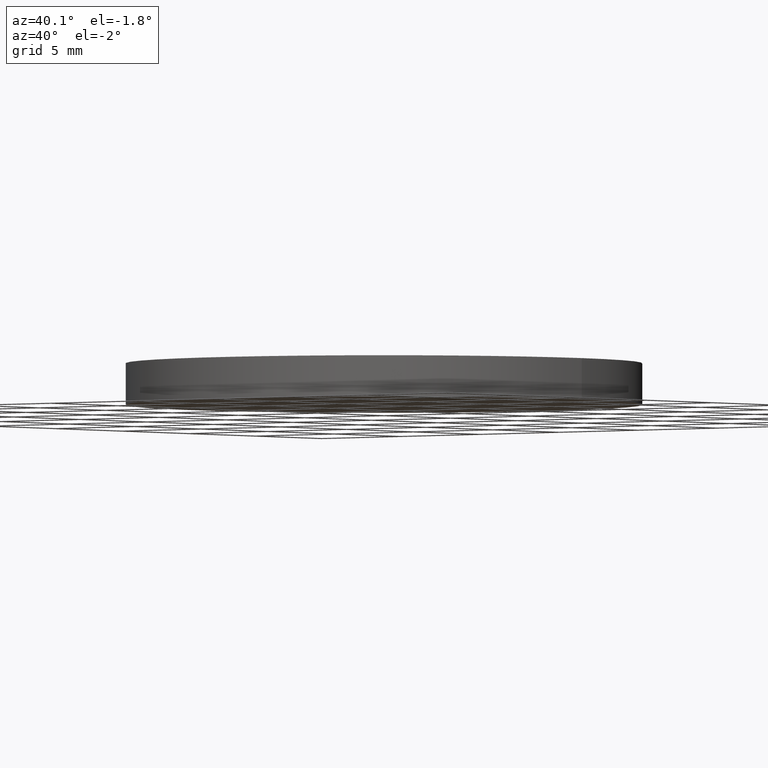
[diagram: clean part render]
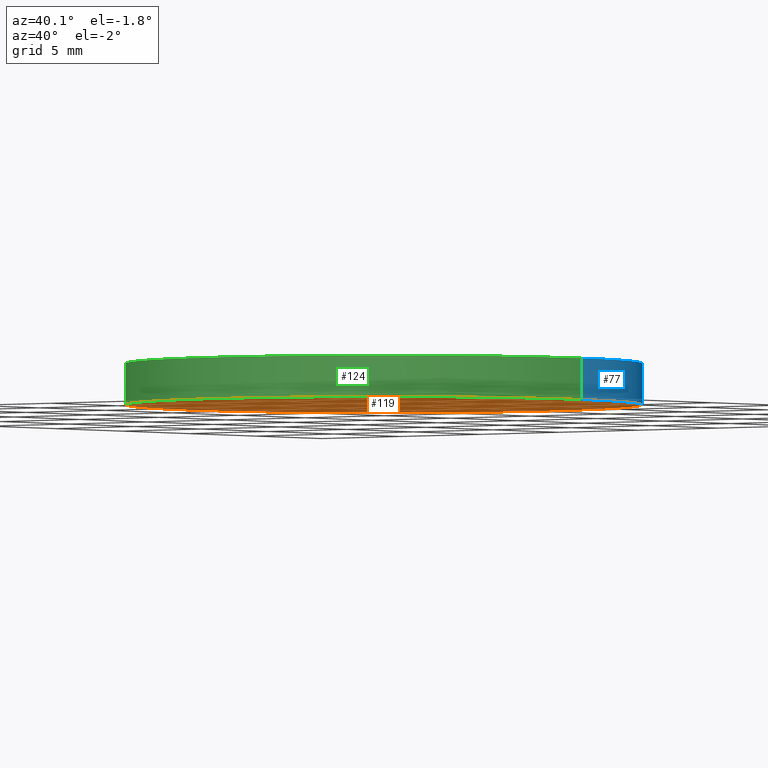
[diagram: same view with three faces highlighted in distinct colors, each labeled with its STEP entity id]
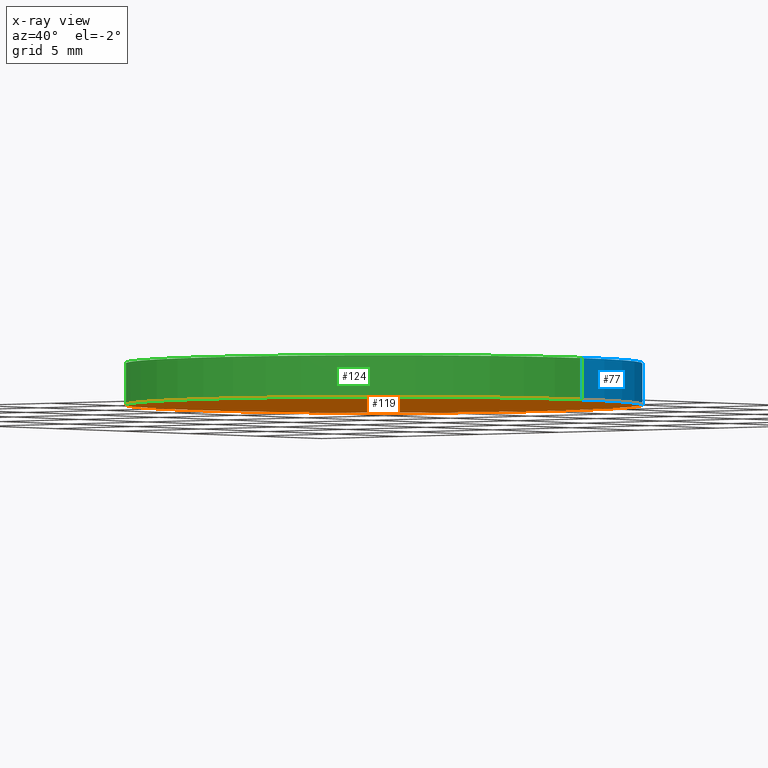
[diagram: x-ray of the same camera — body ghosted, the three highlighted faces saturated]
A machine part, auxiliary view with three faces highlighted in distinct colors.
The next image is the same camera in x-ray (body ghosted, the three faces saturated) — at least one of them is partly hidden behind the body in this view.
Their STEP definitions:

[orange] entity #119 — the highlighted planar face has unit normal (0, 0, 1).
#1 = CARTESIAN_POINT ( 'NONE',  ( -12.50000000000000000, 0.0000000000000000000, 0.0000000000000000000 ) ) ;
#6 = AXIS2_PLACEMENT_3D ( 'NONE', #138, #137, #64 ) ;
#18 = CIRCLE ( 'NONE', #131, 12.50000000000000000 ) ;
#19 = AXIS2_PLACEMENT_3D ( 'NONE', #56, #114, #46 ) ;
#21 = EDGE_CURVE ( 'NONE', #81, #61, #47, .T. ) ;
#22 = ORIENTED_EDGE ( 'NONE', *, *, #21, .F. ) ;
#36 = FACE_OUTER_BOUND ( 'NONE', #128, .T. ) ;
#46 = DIRECTION ( 'NONE',  ( 1.000000000000000000, 0.0000000000000000000, 0.0000000000000000000 ) ) ;
#47 = CIRCLE ( 'NONE', #19, 12.50000000000000000 ) ;
#53 = DIRECTION ( 'NONE',  ( 1.000000000000000000, 0.0000000000000000000, 0.0000000000000000000 ) ) ;
#56 = CARTESIAN_POINT ( 'NONE',  ( 0.0000000000000000000, 0.0000000000000000000, 0.0000000000000000000 ) ) ;
#61 = VERTEX_POINT ( 'NONE', #1 ) ;
#62 = ORIENTED_EDGE ( 'NONE', *, *, #115, .F. ) ;
#64 = DIRECTION ( 'NONE',  ( 1.000000000000000000, 0.0000000000000000000, -0.0000000000000000000 ) ) ;
#65 = CARTESIAN_POINT ( 'NONE',  ( 0.0000000000000000000, 0.0000000000000000000, 0.0000000000000000000 ) ) ;
#81 = VERTEX_POINT ( 'NONE', #140 ) ;
#98 = PLANE ( 'NONE',  #6 ) ;
#114 = DIRECTION ( 'NONE',  ( 0.0000000000000000000, 0.0000000000000000000, 1.000000000000000000 ) ) ;
#115 = EDGE_CURVE ( 'NONE', #61, #81, #18, .T. ) ;
#119 = ADVANCED_FACE ( 'NONE', ( #36 ), #98, .F. ) ;
#125 = DIRECTION ( 'NONE',  ( 0.0000000000000000000, 0.0000000000000000000, 1.000000000000000000 ) ) ;
#128 = EDGE_LOOP ( 'NONE', ( #62, #22 ) ) ;
#131 = AXIS2_PLACEMENT_3D ( 'NONE', #65, #125, #53 ) ;
#137 = DIRECTION ( 'NONE',  ( 0.0000000000000000000, 0.0000000000000000000, 1.000000000000000000 ) ) ;
#138 = CARTESIAN_POINT ( 'NONE',  ( 0.0000000000000000000, 0.0000000000000000000, 0.0000000000000000000 ) ) ;
#140 = CARTESIAN_POINT ( 'NONE',  ( 12.50000000000000000, 1.530808498934191500E-015, 0.0000000000000000000 ) ) ;

[blue] entity #77 — the highlighted cylindrical surface (partial cylindrical patch) has radius 12.5 mm, axis along (-0, -0, -1).
#1 = CARTESIAN_POINT ( 'NONE',  ( -12.50000000000000000, 0.0000000000000000000, 0.0000000000000000000 ) ) ;
#7 = EDGE_CURVE ( 'NONE', #50, #30, #58, .T. ) ;
#15 = DIRECTION ( 'NONE',  ( -0.0000000000000000000, -0.0000000000000000000, -1.000000000000000000 ) ) ;
#16 = CARTESIAN_POINT ( 'NONE',  ( -12.50000000000000000, 0.0000000000000000000, 2.000000000000000000 ) ) ;
#17 = AXIS2_PLACEMENT_3D ( 'NONE', #66, #15, #39 ) ;
#19 = AXIS2_PLACEMENT_3D ( 'NONE', #56, #114, #46 ) ;
#20 = LINE ( 'NONE', #54, #96 ) ;
#21 = EDGE_CURVE ( 'NONE', #81, #61, #47, .T. ) ;
#27 = AXIS2_PLACEMENT_3D ( 'NONE', #57, #101, #40 ) ;
#29 = DIRECTION ( 'NONE',  ( -0.0000000000000000000, -0.0000000000000000000, -1.000000000000000000 ) ) ;
#30 = VERTEX_POINT ( 'NONE', #16 ) ;
#39 = DIRECTION ( 'NONE',  ( -1.000000000000000000, 0.0000000000000000000, 0.0000000000000000000 ) ) ;
#40 = DIRECTION ( 'NONE',  ( 1.000000000000000000, 0.0000000000000000000, 0.0000000000000000000 ) ) ;
#46 = DIRECTION ( 'NONE',  ( 1.000000000000000000, 0.0000000000000000000, 0.0000000000000000000 ) ) ;
#47 = CIRCLE ( 'NONE', #19, 12.50000000000000000 ) ;
#50 = VERTEX_POINT ( 'NONE', #127 ) ;
#54 = CARTESIAN_POINT ( 'NONE',  ( 12.50000000000000000, 1.530808498934191500E-015, 2.000000000000000000 ) ) ;
#56 = CARTESIAN_POINT ( 'NONE',  ( 0.0000000000000000000, 0.0000000000000000000, 0.0000000000000000000 ) ) ;
#57 = CARTESIAN_POINT ( 'NONE',  ( 0.0000000000000000000, 0.0000000000000000000, 2.000000000000000000 ) ) ;
#58 = CIRCLE ( 'NONE', #27, 12.50000000000000000 ) ;
#60 = CYLINDRICAL_SURFACE ( 'NONE', #17, 12.50000000000000000 ) ;
#61 = VERTEX_POINT ( 'NONE', #1 ) ;
#66 = CARTESIAN_POINT ( 'NONE',  ( 0.0000000000000000000, 0.0000000000000000000, 2.000000000000000000 ) ) ;
#69 = EDGE_LOOP ( 'NONE', ( #84, #87, #120, #92 ) ) ;
#70 = EDGE_CURVE ( 'NONE', #30, #61, #80, .T. ) ;
#74 = FACE_OUTER_BOUND ( 'NONE', #69, .T. ) ;
#76 = CARTESIAN_POINT ( 'NONE',  ( -12.50000000000000000, 0.0000000000000000000, 2.000000000000000000 ) ) ;
#77 = ADVANCED_FACE ( 'NONE', ( #74 ), #60, .T. ) ;
#80 = LINE ( 'NONE', #76, #133 ) ;
#81 = VERTEX_POINT ( 'NONE', #140 ) ;
#84 = ORIENTED_EDGE ( 'NONE', *, *, #7, .F. ) ;
#87 = ORIENTED_EDGE ( 'NONE', *, *, #102, .T. ) ;
#92 = ORIENTED_EDGE ( 'NONE', *, *, #70, .F. ) ;
#96 = VECTOR ( 'NONE', #126, 1000.000000000000000 ) ;
#101 = DIRECTION ( 'NONE',  ( 0.0000000000000000000, 0.0000000000000000000, 1.000000000000000000 ) ) ;
#102 = EDGE_CURVE ( 'NONE', #50, #81, #20, .T. ) ;
#114 = DIRECTION ( 'NONE',  ( 0.0000000000000000000, 0.0000000000000000000, 1.000000000000000000 ) ) ;
#120 = ORIENTED_EDGE ( 'NONE', *, *, #21, .T. ) ;
#126 = DIRECTION ( 'NONE',  ( -0.0000000000000000000, -0.0000000000000000000, -1.000000000000000000 ) ) ;
#127 = CARTESIAN_POINT ( 'NONE',  ( 12.50000000000000000, 1.530808498934191500E-015, 2.000000000000000000 ) ) ;
#133 = VECTOR ( 'NONE', #29, 1000.000000000000000 ) ;
#140 = CARTESIAN_POINT ( 'NONE',  ( 12.50000000000000000, 1.530808498934191500E-015, 0.0000000000000000000 ) ) ;

[green] entity #124 — the highlighted cylindrical surface (partial cylindrical patch) has radius 12.5 mm, axis along (-0, -0, -1).
#1 = CARTESIAN_POINT ( 'NONE',  ( -12.50000000000000000, 0.0000000000000000000, 0.0000000000000000000 ) ) ;
#10 = AXIS2_PLACEMENT_3D ( 'NONE', #12, #44, #52 ) ;
#12 = CARTESIAN_POINT ( 'NONE',  ( 0.0000000000000000000, 0.0000000000000000000, 2.000000000000000000 ) ) ;
#13 = DIRECTION ( 'NONE',  ( 1.000000000000000000, 0.0000000000000000000, 0.0000000000000000000 ) ) ;
#16 = CARTESIAN_POINT ( 'NONE',  ( -12.50000000000000000, 0.0000000000000000000, 2.000000000000000000 ) ) ;
#18 = CIRCLE ( 'NONE', #131, 12.50000000000000000 ) ;
#20 = LINE ( 'NONE', #54, #96 ) ;
#28 = CARTESIAN_POINT ( 'NONE',  ( 0.0000000000000000000, 0.0000000000000000000, 2.000000000000000000 ) ) ;
#29 = DIRECTION ( 'NONE',  ( -0.0000000000000000000, -0.0000000000000000000, -1.000000000000000000 ) ) ;
#30 = VERTEX_POINT ( 'NONE', #16 ) ;
#44 = DIRECTION ( 'NONE',  ( -0.0000000000000000000, -0.0000000000000000000, -1.000000000000000000 ) ) ;
#48 = ORIENTED_EDGE ( 'NONE', *, *, #70, .T. ) ;
#50 = VERTEX_POINT ( 'NONE', #127 ) ;
#52 = DIRECTION ( 'NONE',  ( -1.000000000000000000, 0.0000000000000000000, 0.0000000000000000000 ) ) ;
#53 = DIRECTION ( 'NONE',  ( 1.000000000000000000, 0.0000000000000000000, 0.0000000000000000000 ) ) ;
#54 = CARTESIAN_POINT ( 'NONE',  ( 12.50000000000000000, 1.530808498934191500E-015, 2.000000000000000000 ) ) ;
#59 = ORIENTED_EDGE ( 'NONE', *, *, #107, .F. ) ;
#61 = VERTEX_POINT ( 'NONE', #1 ) ;
#65 = CARTESIAN_POINT ( 'NONE',  ( 0.0000000000000000000, 0.0000000000000000000, 0.0000000000000000000 ) ) ;
#67 = CYLINDRICAL_SURFACE ( 'NONE', #10, 12.50000000000000000 ) ;
#70 = EDGE_CURVE ( 'NONE', #30, #61, #80, .T. ) ;
#71 = CIRCLE ( 'NONE', #134, 12.50000000000000000 ) ;
#76 = CARTESIAN_POINT ( 'NONE',  ( -12.50000000000000000, 0.0000000000000000000, 2.000000000000000000 ) ) ;
#78 = EDGE_LOOP ( 'NONE', ( #121, #59, #48, #100 ) ) ;
#80 = LINE ( 'NONE', #76, #133 ) ;
#81 = VERTEX_POINT ( 'NONE', #140 ) ;
#86 = DIRECTION ( 'NONE',  ( 0.0000000000000000000, 0.0000000000000000000, 1.000000000000000000 ) ) ;
#94 = FACE_OUTER_BOUND ( 'NONE', #78, .T. ) ;
#96 = VECTOR ( 'NONE', #126, 1000.000000000000000 ) ;
#100 = ORIENTED_EDGE ( 'NONE', *, *, #115, .T. ) ;
#102 = EDGE_CURVE ( 'NONE', #50, #81, #20, .T. ) ;
#107 = EDGE_CURVE ( 'NONE', #30, #50, #71, .T. ) ;
#115 = EDGE_CURVE ( 'NONE', #61, #81, #18, .T. ) ;
#121 = ORIENTED_EDGE ( 'NONE', *, *, #102, .F. ) ;
#124 = ADVANCED_FACE ( 'NONE', ( #94 ), #67, .T. ) ;
#125 = DIRECTION ( 'NONE',  ( 0.0000000000000000000, 0.0000000000000000000, 1.000000000000000000 ) ) ;
#126 = DIRECTION ( 'NONE',  ( -0.0000000000000000000, -0.0000000000000000000, -1.000000000000000000 ) ) ;
#127 = CARTESIAN_POINT ( 'NONE',  ( 12.50000000000000000, 1.530808498934191500E-015, 2.000000000000000000 ) ) ;
#131 = AXIS2_PLACEMENT_3D ( 'NONE', #65, #125, #53 ) ;
#133 = VECTOR ( 'NONE', #29, 1000.000000000000000 ) ;
#134 = AXIS2_PLACEMENT_3D ( 'NONE', #28, #86, #13 ) ;
#140 = CARTESIAN_POINT ( 'NONE',  ( 12.50000000000000000, 1.530808498934191500E-015, 0.0000000000000000000 ) ) ;